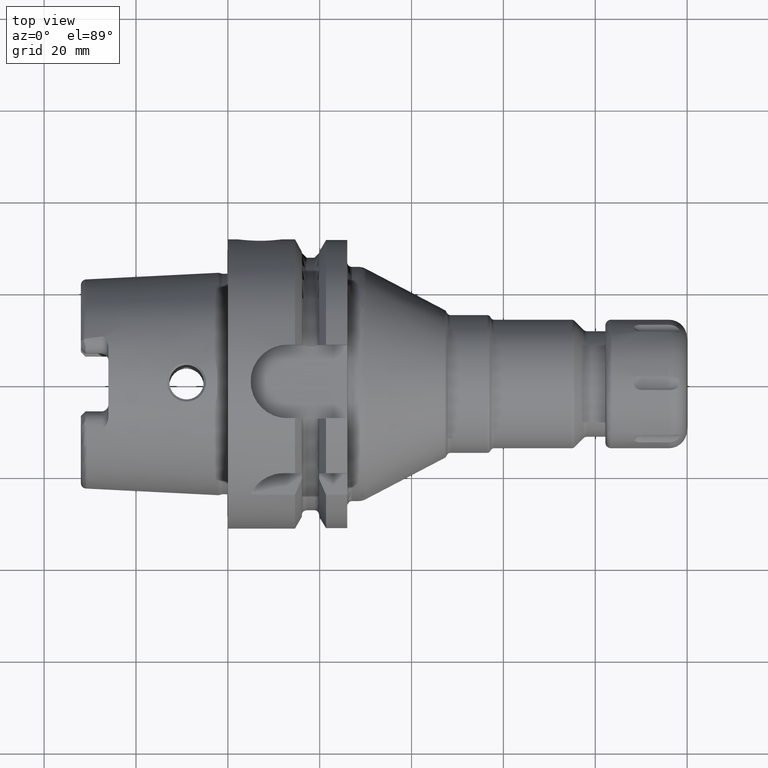
[diagram: clean part render]
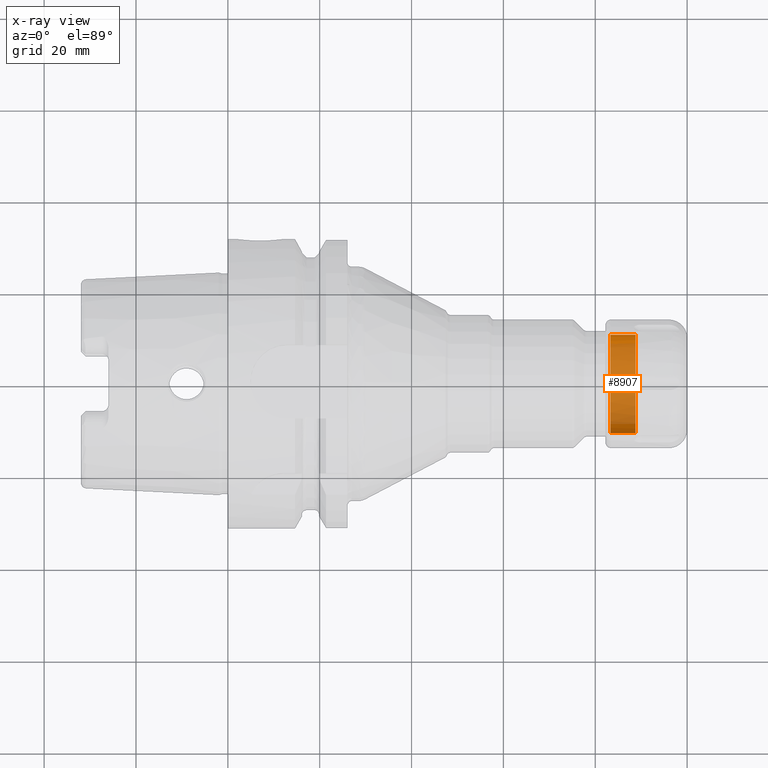
[diagram: x-ray — body ghosted, one internal face saturated and labeled with its STEP entity id]
A machine part, top view, then the same camera in x-ray: the body is ghosted and one INTERNAL B-rep face — a face not visible from any outside direction — is saturated and labeled: STEP entity #8907.
In plain terms, the highlighted cylindrical surface (partial cylindrical patch) has radius 10.69 mm, axis along (1, 0, 0).
Its self-contained STEP definition (entity closure, byte-faithful):
#7778=CARTESIAN_POINT('',(6.55E0,0.E0,0.E0));
#7779=DIRECTION('',(1.E0,0.E0,0.E0));
#7780=DIRECTION('',(0.E0,-1.E0,0.E0));
#7781=AXIS2_PLACEMENT_3D('',#7778,#7779,#7780);
#7787=CARTESIAN_POINT('',(6.55E0,0.E0,0.E0));
#7788=DIRECTION('',(1.E0,0.E0,0.E0));
#7789=DIRECTION('',(0.E0,0.E0,-1.E0));
#7790=AXIS2_PLACEMENT_3D('',#7787,#7788,#7789);
#7806=CARTESIAN_POINT('',(1.06E0,0.E0,0.E0));
#7807=DIRECTION('',(1.E0,0.E0,0.E0));
#7808=DIRECTION('',(0.E0,-1.E0,0.E0));
#7809=AXIS2_PLACEMENT_3D('',#7806,#7807,#7808);
#7811=DIRECTION('',(1.E0,0.E0,0.E0));
#7812=VECTOR('',#7811,5.49E0);
#7813=CARTESIAN_POINT('',(1.06E0,-1.069E1,0.E0));
#7814=LINE('',#7813,#7812);
#7876=DIRECTION('',(1.E0,0.E0,0.E0));
#7877=VECTOR('',#7876,5.49E0);
#7878=CARTESIAN_POINT('',(1.06E0,1.069E1,0.E0));
#7879=LINE('',#7878,#7877);
#8033=CARTESIAN_POINT('',(6.55E0,0.E0,-1.069E1));
#8034=VERTEX_POINT('',#8033);
#8037=CARTESIAN_POINT('',(6.55E0,1.069E1,0.E0));
#8038=VERTEX_POINT('',#8037);
#8039=CARTESIAN_POINT('',(6.55E0,-1.069E1,0.E0));
#8040=VERTEX_POINT('',#8039);
#8103=CARTESIAN_POINT('',(1.06E0,1.069E1,0.E0));
#8104=CARTESIAN_POINT('',(1.06E0,-1.069E1,0.E0));
#8105=VERTEX_POINT('',#8103);
#8106=VERTEX_POINT('',#8104);
#8892=CARTESIAN_POINT('',(0.E0,0.E0,0.E0));
#8893=DIRECTION('',(1.E0,0.E0,0.E0));
#8894=DIRECTION('',(0.E0,1.E0,0.E0));
#8895=AXIS2_PLACEMENT_3D('',#8892,#8893,#8894);
#8896=CYLINDRICAL_SURFACE('',#8895,1.069E1);
#8898=ORIENTED_EDGE('',*,*,#8897,.T.);
#8900=ORIENTED_EDGE('',*,*,#8899,.T.);
#8901=ORIENTED_EDGE('',*,*,#8883,.F.);
#8902=ORIENTED_EDGE('',*,*,#8872,.F.);
#8904=ORIENTED_EDGE('',*,*,#8903,.F.);
#8905=EDGE_LOOP('',(#8898,#8900,#8901,#8902,#8904));
#8906=FACE_OUTER_BOUND('',#8905,.F.);
#8907=ADVANCED_FACE('',(#8906),#8896,.F.);
#7782=CIRCLE('',#7781,1.069E1);
#7791=CIRCLE('',#7790,1.069E1);
#7810=CIRCLE('',#7809,1.069E1);
#8872=EDGE_CURVE('',#8040,#8034,#7782,.T.);
#8883=EDGE_CURVE('',#8034,#8038,#7791,.T.);
#8897=EDGE_CURVE('',#8106,#8105,#7810,.T.);
#8899=EDGE_CURVE('',#8105,#8038,#7879,.T.);
#8903=EDGE_CURVE('',#8106,#8040,#7814,.T.);